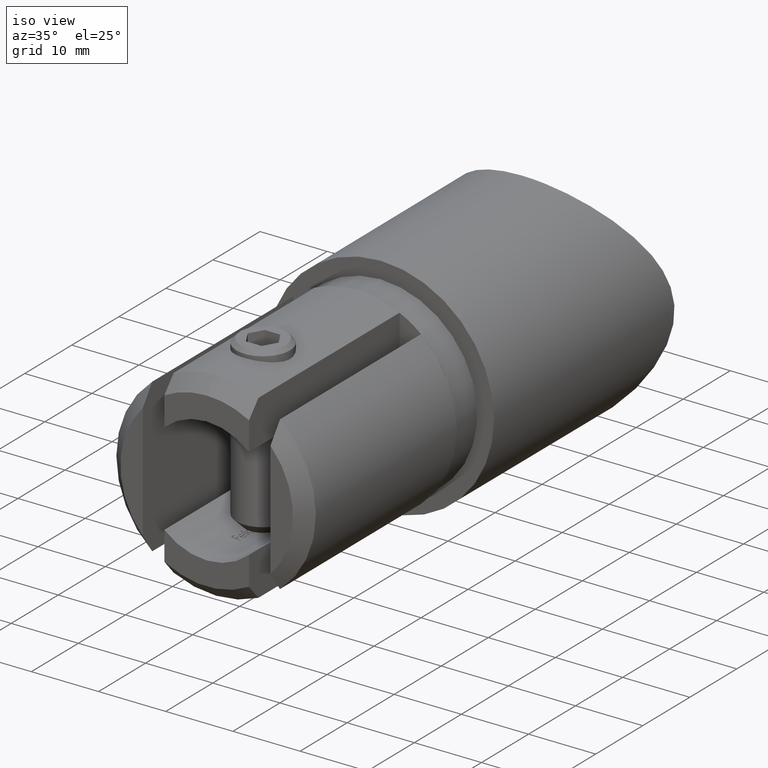
[diagram: clean part render]
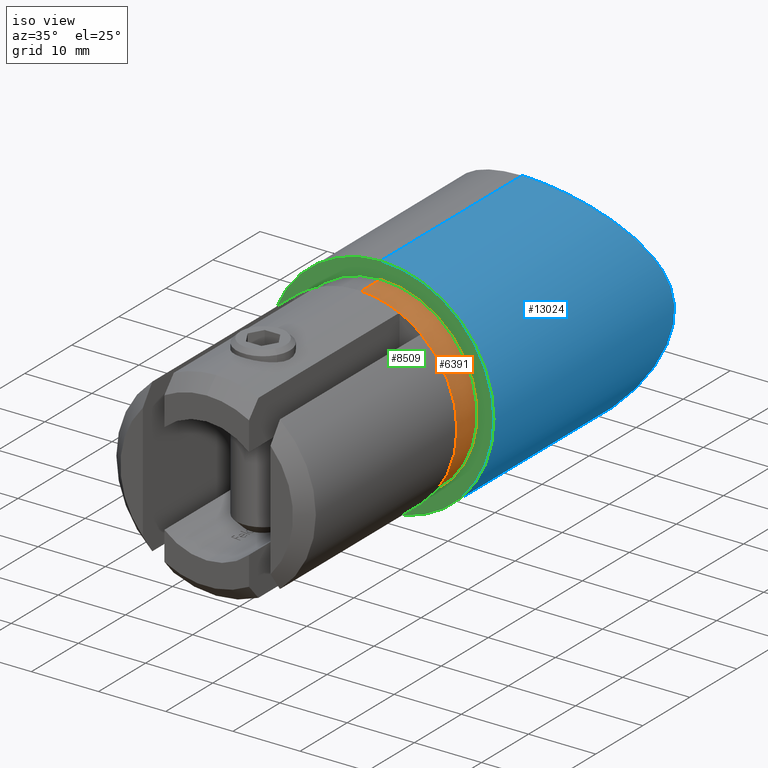
[diagram: same view with three faces highlighted in distinct colors, each labeled with its STEP entity id]
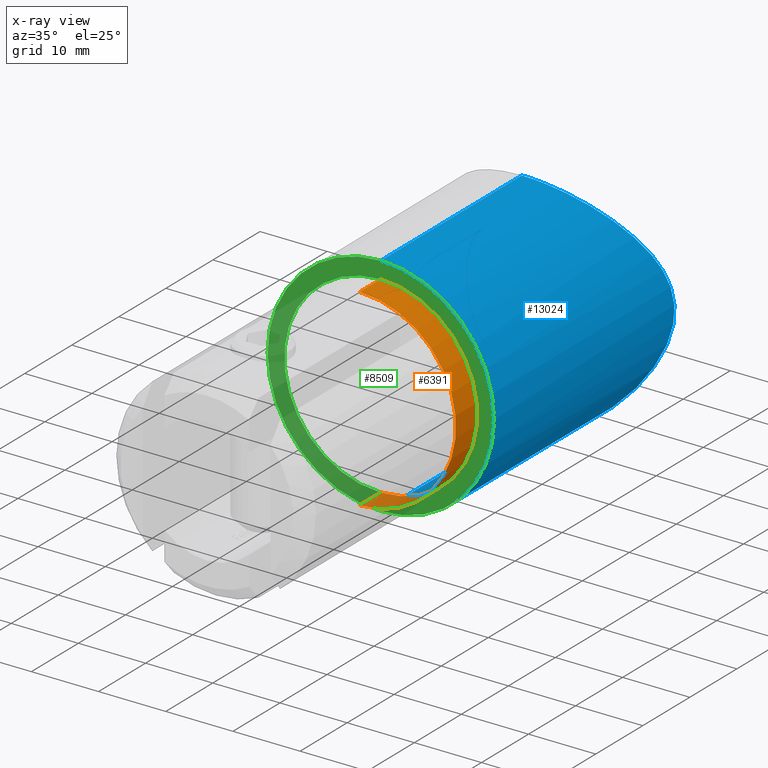
[diagram: x-ray of the same camera — body ghosted, the three highlighted faces saturated]
A machine part, iso view with three faces highlighted in distinct colors.
The next image is the same camera in x-ray (body ghosted, the three faces saturated) — at least one of them is partly hidden behind the body in this view.
Their STEP definitions:

[orange] entity #6391 — the highlighted cylindrical surface (partial cylindrical patch) has radius 14.35 mm, axis along (0, 1, 0).
#539 = CARTESIAN_POINT ( 'NONE',  ( 1.757368156776452000E-015, 0.0000000000000000000, -14.35000000000000100 ) ) ;
#964 = ORIENTED_EDGE ( 'NONE', *, *, #7772, .F. ) ;
#1414 = VERTEX_POINT ( 'NONE', #4185 ) ;
#1473 = CARTESIAN_POINT ( 'NONE',  ( 0.0000000000000000000, 0.0000000000000000000, 0.0000000000000000000 ) ) ;
#1778 = DIRECTION ( 'NONE',  ( -0.0000000000000000000, 1.000000000000000000, -0.0000000000000000000 ) ) ;
#2659 = CARTESIAN_POINT ( 'NONE',  ( 0.0000000000000000000, 0.0000000000000000000, 14.35000000000000100 ) ) ;
#3065 = VERTEX_POINT ( 'NONE', #539 ) ;
#3084 = AXIS2_PLACEMENT_3D ( 'NONE', #11923, #8751, #14047 ) ;
#3158 = VECTOR ( 'NONE', #4791, 1000.000000000000000 ) ;
#4185 = CARTESIAN_POINT ( 'NONE',  ( 1.757368156776452000E-015, -4.499999999999992900, -14.35000000000000100 ) ) ;
#4519 = DIRECTION ( 'NONE',  ( 0.0000000000000000000, 0.0000000000000000000, 1.000000000000000000 ) ) ;
#4553 = CIRCLE ( 'NONE', #13268, 14.35000000000000100 ) ;
#4791 = DIRECTION ( 'NONE',  ( -0.0000000000000000000, 1.000000000000000000, -0.0000000000000000000 ) ) ;
#4892 = VERTEX_POINT ( 'NONE', #2659 ) ;
#5031 = VERTEX_POINT ( 'NONE', #11585 ) ;
#5045 = EDGE_CURVE ( 'NONE', #1414, #3065, #13498, .T. ) ;
#5669 = CARTESIAN_POINT ( 'NONE',  ( 0.0000000000000000000, -5.500000000000000000, 0.0000000000000000000 ) ) ;
#6391 = ADVANCED_FACE ( 'NONE', ( #6809 ), #14018, .T. ) ;
#6809 = FACE_OUTER_BOUND ( 'NONE', #12159, .T. ) ;
#6879 = DIRECTION ( 'NONE',  ( -0.0000000000000000000, -1.000000000000000000, -0.0000000000000000000 ) ) ;
#7068 = LINE ( 'NONE', #7998, #3158 ) ;
#7305 = CARTESIAN_POINT ( 'NONE',  ( 1.757368156776452000E-015, -5.500000000000000000, -14.35000000000000100 ) ) ;
#7772 = EDGE_CURVE ( 'NONE', #5031, #4892, #7068, .T. ) ;
#7998 = CARTESIAN_POINT ( 'NONE',  ( 0.0000000000000000000, -5.500000000000000000, 14.35000000000000100 ) ) ;
#8532 = ORIENTED_EDGE ( 'NONE', *, *, #11386, .T. ) ;
#8751 = DIRECTION ( 'NONE',  ( 0.0000000000000000000, 1.000000000000000000, 0.0000000000000000000 ) ) ;
#8875 = AXIS2_PLACEMENT_3D ( 'NONE', #5669, #12287, #4519 ) ;
#8917 = ORIENTED_EDGE ( 'NONE', *, *, #5045, .T. ) ;
#9243 = DIRECTION ( 'NONE',  ( 0.0000000000000000000, 0.0000000000000000000, 1.000000000000000000 ) ) ;
#10526 = ORIENTED_EDGE ( 'NONE', *, *, #10846, .T. ) ;
#10846 = EDGE_CURVE ( 'NONE', #3065, #4892, #4553, .T. ) ;
#11386 = EDGE_CURVE ( 'NONE', #5031, #1414, #12094, .T. ) ;
#11585 = CARTESIAN_POINT ( 'NONE',  ( 0.0000000000000000000, -4.499999999999992900, 14.35000000000000100 ) ) ;
#11923 = CARTESIAN_POINT ( 'NONE',  ( 0.0000000000000000000, -4.499999999999992900, 0.0000000000000000000 ) ) ;
#12094 = CIRCLE ( 'NONE', #3084, 14.35000000000000100 ) ;
#12159 = EDGE_LOOP ( 'NONE', ( #8532, #8917, #10526, #964 ) ) ;
#12287 = DIRECTION ( 'NONE',  ( -0.0000000000000000000, 1.000000000000000000, -0.0000000000000000000 ) ) ;
#13166 = VECTOR ( 'NONE', #1778, 1000.000000000000000 ) ;
#13268 = AXIS2_PLACEMENT_3D ( 'NONE', #1473, #6879, #9243 ) ;
#13498 = LINE ( 'NONE', #7305, #13166 ) ;
#14018 = CYLINDRICAL_SURFACE ( 'NONE', #8875, 14.35000000000000100 ) ;
#14047 = DIRECTION ( 'NONE',  ( 0.0000000000000000000, 0.0000000000000000000, -1.000000000000000000 ) ) ;

[blue] entity #13024 — the highlighted cylindrical surface (partial cylindrical patch) has radius 16.85 mm, axis along (-0, -1, -0).
#56 = EDGE_CURVE ( 'NONE', #2814, #5144, #12674, .T. ) ;
#98 = AXIS2_PLACEMENT_3D ( 'NONE', #9007, #3548, #4784 ) ;
#626 = CARTESIAN_POINT ( 'NONE',  ( 7.716559446439381600, 31.45474614807817200, -14.98929494265544400 ) ) ;
#885 = CARTESIAN_POINT ( 'NONE',  ( 16.84259987644884000, 38.39026117274976000, -0.5789950869863749200 ) ) ;
#987 = CARTESIAN_POINT ( 'NONE',  ( 10.46225596385895600, 32.74992633264672300, 13.25165637620880700 ) ) ;
#1029 = CARTESIAN_POINT ( 'NONE',  ( 15.89937125098132500, 37.22603838976392900, -5.607292503081292300 ) ) ;
#1074 = CARTESIAN_POINT ( 'NONE',  ( 16.26003657711012500, 37.64786807820700400, 4.562650062551672800 ) ) ;
#1873 = CARTESIAN_POINT ( 'NONE',  ( 6.199476287185168700, 30.92409742411103600, -15.67799049705145200 ) ) ;
#1958 = ORIENTED_EDGE ( 'NONE', *, *, #3120, .T. ) ;
#1978 = CARTESIAN_POINT ( 'NONE',  ( 15.70975991751731900, 37.01066891572904900, -6.116587711638695500 ) ) ;
#2031 = CARTESIAN_POINT ( 'NONE',  ( 16.37714272652015500, 37.79459830865002300, -4.003997536888231700 ) ) ;
#2079 = CARTESIAN_POINT ( 'NONE',  ( 8.685260252661310100, 31.86341861385329100, 14.44953149310197600 ) ) ;
#2168 = CARTESIAN_POINT ( 'NONE',  ( 14.57885652733212600, 35.82672618552683700, -8.513162078301769900 ) ) ;
#2208 = DIRECTION ( 'NONE',  ( -0.0000000000000000000, -1.000000000000000000, -0.0000000000000000000 ) ) ;
#2409 = DIRECTION ( 'NONE',  ( -0.0000000000000000000, -1.000000000000000000, -0.0000000000000000000 ) ) ;
#2428 = VERTEX_POINT ( 'NONE', #3484 ) ;
#2814 = VERTEX_POINT ( 'NONE', #3995 ) ;
#2958 = ORIENTED_EDGE ( 'NONE', *, *, #12640, .T. ) ;
#3083 = CARTESIAN_POINT ( 'NONE',  ( 16.72934533338461400, 38.24148321607496800, 2.033668622362501100 ) ) ;
#3120 = EDGE_CURVE ( 'NONE', #2428, #2814, #7231, .T. ) ;
#3136 = CARTESIAN_POINT ( 'NONE',  ( 16.69162309614349500, 38.19244258669642300, 2.322930494330958300 ) ) ;
#3227 = CARTESIAN_POINT ( 'NONE',  ( 16.55035069560218000, 38.01166332098601700, 3.176262885880485300 ) ) ;
#3268 = CARTESIAN_POINT ( 'NONE',  ( 15.07591641674382500, 36.32437024459041200, 7.603589315827645300 ) ) ;
#3362 = CARTESIAN_POINT ( 'NONE',  ( 0.0000000000000000000, 46.85000000000000100, 0.0000000000000000000 ) ) ;
#3484 = CARTESIAN_POINT ( 'NONE',  ( -4.929448998416318200E-016, 30.00000000000000000, -16.85000000000000100 ) ) ;
#3548 = DIRECTION ( 'NONE',  ( 0.0000000000000000000, 1.000000000000000000, 0.0000000000000000000 ) ) ;
#3898 = CIRCLE ( 'NONE', #98, 16.85000000000000100 ) ;
#3995 = CARTESIAN_POINT ( 'NONE',  ( 2.063626353805236100E-015, 30.00000000000000000, 16.85000000000000100 ) ) ;
#4025 = CARTESIAN_POINT ( 'NONE',  ( 1.181556889674104900, 30.00000000000000400, -16.84999999999999800 ) ) ;
#4186 = CARTESIAN_POINT ( 'NONE',  ( 5.682154563176887900, 30.75052173111759400, 15.90264881582777600 ) ) ;
#4268 = FACE_OUTER_BOUND ( 'NONE', #13630, .T. ) ;
#4321 = CARTESIAN_POINT ( 'NONE',  ( 2.903314856846398200, 30.19279873044072100, 16.60809636845272800 ) ) ;
#4363 = CARTESIAN_POINT ( 'NONE',  ( 14.57190337983206700, 35.82022307122552700, 8.524566480894035800 ) ) ;
#4784 = DIRECTION ( 'NONE',  ( 0.0000000000000000000, 0.0000000000000000000, 1.000000000000000000 ) ) ;
#5069 = CARTESIAN_POINT ( 'NONE',  ( -4.929448998416318200E-016, 30.00000000000000000, -16.85000000000000100 ) ) ;
#5144 = VERTEX_POINT ( 'NONE', #13990 ) ;
#5276 = CARTESIAN_POINT ( 'NONE',  ( 2.320896780750530700, 30.11997647474943200, 16.69955715251201400 ) ) ;
#5327 = CARTESIAN_POINT ( 'NONE',  ( 16.84984645974758200, 38.39989471116420100, 0.5871813856123622200 ) ) ;
#5426 = CARTESIAN_POINT ( 'NONE',  ( 16.69834227667588800, 38.20095685520983200, -2.329934241616749400 ) ) ;
#5445 = DIRECTION ( 'NONE',  ( -0.0000000000000000000, -1.000000000000000000, -0.0000000000000000000 ) ) ;
#5471 = CARTESIAN_POINT ( 'NONE',  ( 15.07970173986875700, 36.32854700073314500, -7.594201935517163300 ) ) ;
#5620 = CARTESIAN_POINT ( 'NONE',  ( 2.063529856563290200E-015, 46.85000000000000100, 16.85000000000000100 ) ) ;
#5649 = AXIS2_PLACEMENT_3D ( 'NONE', #3362, #2409, #10068 ) ;
#5831 = ORIENTED_EDGE ( 'NONE', *, *, #56, .T. ) ;
#6134 = CARTESIAN_POINT ( 'NONE',  ( 3.741806056686025200, 30.33246918203720800, -16.43180256126956700 ) ) ;
#6226 = CARTESIAN_POINT ( 'NONE',  ( 5.672407247642357000, 30.76901148680994100, -15.87681490730883900 ) ) ;
#6264 = CARTESIAN_POINT ( 'NONE',  ( 7.221558526228946600, 31.26695576974164600, -15.23423725406877200 ) ) ;
#6315 = CARTESIAN_POINT ( 'NONE',  ( 4.855386588988873900, 30.56432261774377000, -16.13782699025737700 ) ) ;
#6367 = CARTESIAN_POINT ( 'NONE',  ( 1.162196273828286300, 30.02401250692947700, 16.81996048681485700 ) ) ;
#6423 = CARTESIAN_POINT ( 'NONE',  ( 12.37954093696656000, 34.00742689552697600, -11.44303726533594900 ) ) ;
#6468 = CARTESIAN_POINT ( 'NONE',  ( 7.225739337941788200, 31.26837808967687600, 15.23239462395737900 ) ) ;
#6554 = CARTESIAN_POINT ( 'NONE',  ( 16.60889948691977800, 38.08504798754958600, -2.896076310046904000 ) ) ;
#6637 = CYLINDRICAL_SURFACE ( 'NONE', #5649, 16.85000000000000100 ) ;
#7206 = CARTESIAN_POINT ( 'NONE',  ( 4.021662633155369100, 30.38486124304029800, -16.36555868954586400 ) ) ;
#7231 = B_SPLINE_CURVE_WITH_KNOTS ( 'NONE', 3,
 ( #5069, #4025, #12845, #6134, #7206, #12896, #6315, #6226, #1873, #6264, #626, #8334, #13960, #9640, #9784, #6423, #8669, #10729, #8576, #2168, #5471, #1978, #1029, #11840, #2031, #6554, #5426, #9689, #7510, #885, #7560, #5327, #11934, #3083, #3136, #10775, #3227, #1074, #12953, #3268, #4363, #14243, #10872, #7609, #9835, #7654, #987, #12032, #2079, #10915, #6468, #4186, #8717, #4321, #5276, #6367, #13156, #14060 ),
 .UNSPECIFIED., .F., .F.,
 ( 4, 2, 2, 2, 2, 2, 2, 2, 2, 2, 2, 2, 2, 2, 2, 2, 2, 2, 2, 2, 2, 2, 2, 2, 2, 2, 2, 2, 4 ),
 ( 4.768176414785982700E-019, 0.003486204510297008300, 0.004357755637871262400, 0.005229306765445515500, 0.006972409020594019300, 0.008715511275742528200, 0.01045861353089103600, 0.01394481804118804400, 0.01568792029633654300, 0.01743102255148504600, 0.02091722706178204100, 0.02266032931693054400, 0.02440343157207904700, 0.02614653382722755300, 0.02701808495480180800, 0.02788963608237606300, 0.02963273833752457000, 0.03050428946509883100, 0.03137584059267308600, 0.03486204510297012000, 0.03834824961326715300, 0.04009135186841567000, 0.04183445412356418000, 0.04532065863386119200, 0.04706376088900970200, 0.04880686314415821200, 0.05229306765445524600, 0.05403616990960376200, 0.05577927216475227200 ),
 .UNSPECIFIED. ) ;
#7510 = CARTESIAN_POINT ( 'NONE',  ( 16.81227433853598200, 38.35017399252556200, -1.164404343307616600 ) ) ;
#7560 = CARTESIAN_POINT ( 'NONE',  ( 16.85007589948661500, 38.40019912763645500, -0.2869566268789489600 ) ) ;
#7609 = CARTESIAN_POINT ( 'NONE',  ( 12.73050817194819100, 34.26785975943553800, 11.05123679378871900 ) ) ;
#7654 = CARTESIAN_POINT ( 'NONE',  ( 11.26811081407450900, 33.23804050639667900, 12.57238595221240000 ) ) ;
#8334 = CARTESIAN_POINT ( 'NONE',  ( 8.676456957169730100, 31.85940792835983300, -14.45487278528352200 ) ) ;
#8527 = VECTOR ( 'NONE', #2208, 1000.000000000000000 ) ;
#8576 = CARTESIAN_POINT ( 'NONE',  ( 13.70508190112805600, 35.05218962763225900, -9.816661939649588200 ) ) ;
#8669 = CARTESIAN_POINT ( 'NONE',  ( 12.72847263667140200, 34.26627660634675000, -11.05368324114858100 ) ) ;
#8717 = CARTESIAN_POINT ( 'NONE',  ( 4.603994318370679300, 30.47636199280558600, 16.25017368779794000 ) ) ;
#9007 = CARTESIAN_POINT ( 'NONE',  ( 0.0000000000000000000, 0.0000000000000000000, 0.0000000000000000000 ) ) ;
#9423 = VECTOR ( 'NONE', #5445, 1000.000000000000000 ) ;
#9640 = CARTESIAN_POINT ( 'NONE',  ( 10.47460710940569400, 32.75646066043319800, -13.24273767105796700 ) ) ;
#9689 = CARTESIAN_POINT ( 'NONE',  ( 16.78924501553718000, 38.31979111992669800, -1.459086665719270900 ) ) ;
#9771 = VERTEX_POINT ( 'NONE', #11335 ) ;
#9784 = CARTESIAN_POINT ( 'NONE',  ( 11.27907401306256600, 33.24534105688385200, -12.56182837294990100 ) ) ;
#9835 = CARTESIAN_POINT ( 'NONE',  ( 12.37811252626949500, 34.00629326756899200, 11.44478080827339300 ) ) ;
#10068 = DIRECTION ( 'NONE',  ( 0.0000000000000000000, 0.0000000000000000000, -1.000000000000000000 ) ) ;
#10403 = ORIENTED_EDGE ( 'NONE', *, *, #13598, .F. ) ;
#10729 = CARTESIAN_POINT ( 'NONE',  ( 13.39169392186835900, 34.78893648901105000, -10.24013978230451400 ) ) ;
#10775 = CARTESIAN_POINT ( 'NONE',  ( 16.60198807763620000, 38.07735388519427700, 2.894871246744711100 ) ) ;
#10872 = CARTESIAN_POINT ( 'NONE',  ( 13.39095838597454100, 34.78837785812929400, 10.24099148000461800 ) ) ;
#10915 = CARTESIAN_POINT ( 'NONE',  ( 7.728196076698862000, 31.45935860308019700, 14.98324702548485600 ) ) ;
#10956 = CARTESIAN_POINT ( 'NONE',  ( 0.0000000000000000000, 46.85000000000000100, -16.85000000000000100 ) ) ;
#11335 = CARTESIAN_POINT ( 'NONE',  ( 0.0000000000000000000, 0.0000000000000000000, -16.85000000000000100 ) ) ;
#11840 = CARTESIAN_POINT ( 'NONE',  ( 16.23448004153123500, 37.61970049591035100, -4.546800322508919300 ) ) ;
#11934 = CARTESIAN_POINT ( 'NONE',  ( 16.81954587140095100, 38.35940843821148100, 1.167300336981163000 ) ) ;
#12032 = CARTESIAN_POINT ( 'NONE',  ( 9.143368710650285900, 32.07758402610883100, 14.16357944739626300 ) ) ;
#12640 = EDGE_CURVE ( 'NONE', #5144, #9771, #3898, .T. ) ;
#12674 = LINE ( 'NONE', #5620, #9423 ) ;
#12845 = CARTESIAN_POINT ( 'NONE',  ( 2.334163097661091400, 30.09845567374396000, -16.72716802952226400 ) ) ;
#12896 = CARTESIAN_POINT ( 'NONE',  ( 4.578047043663654700, 30.50067405663441600, -16.21871655902189200 ) ) ;
#12953 = CARTESIAN_POINT ( 'NONE',  ( 15.92600673886125900, 37.24486377449370900, 5.608933556582748300 ) ) ;
#13024 = ADVANCED_FACE ( 'NONE', ( #4268 ), #6637, .T. ) ;
#13156 = CARTESIAN_POINT ( 'NONE',  ( 0.5816800667479409300, 30.00000000000000000, 16.85000000000000900 ) ) ;
#13598 = EDGE_CURVE ( 'NONE', #2428, #9771, #13866, .T. ) ;
#13630 = EDGE_LOOP ( 'NONE', ( #1958, #5831, #2958, #10403 ) ) ;
#13866 = LINE ( 'NONE', #10956, #8527 ) ;
#13960 = CARTESIAN_POINT ( 'NONE',  ( 9.143178854853113400, 32.07736906135672000, -14.16389879970852100 ) ) ;
#13990 = CARTESIAN_POINT ( 'NONE',  ( 2.063529856563290200E-015, 0.0000000000000000000, 16.85000000000000100 ) ) ;
#14060 = CARTESIAN_POINT ( 'NONE',  ( 2.063626353805236100E-015, 30.00000000000000000, 16.85000000000000100 ) ) ;
#14243 = CARTESIAN_POINT ( 'NONE',  ( 13.70076318717925400, 35.04853352914752700, 9.822581816326078300 ) ) ;

[green] entity #8509 — the highlighted planar face has unit normal (0, 1, 0).
#98 = AXIS2_PLACEMENT_3D ( 'NONE', #9007, #3548, #4784 ) ;
#539 = CARTESIAN_POINT ( 'NONE',  ( 1.757368156776452000E-015, 0.0000000000000000000, -14.35000000000000100 ) ) ;
#651 = ORIENTED_EDGE ( 'NONE', *, *, #12640, .F. ) ;
#838 = ORIENTED_EDGE ( 'NONE', *, *, #9740, .F. ) ;
#1044 = EDGE_LOOP ( 'NONE', ( #838, #651 ) ) ;
#1456 = CARTESIAN_POINT ( 'NONE',  ( 0.0000000000000000000, 0.0000000000000000000, 0.0000000000000000000 ) ) ;
#1473 = CARTESIAN_POINT ( 'NONE',  ( 0.0000000000000000000, 0.0000000000000000000, 0.0000000000000000000 ) ) ;
#2069 = EDGE_CURVE ( 'NONE', #4892, #3065, #11361, .T. ) ;
#2659 = CARTESIAN_POINT ( 'NONE',  ( 0.0000000000000000000, 0.0000000000000000000, 14.35000000000000100 ) ) ;
#2807 = DIRECTION ( 'NONE',  ( -0.0000000000000000000, -1.000000000000000000, -0.0000000000000000000 ) ) ;
#3065 = VERTEX_POINT ( 'NONE', #539 ) ;
#3548 = DIRECTION ( 'NONE',  ( 0.0000000000000000000, 1.000000000000000000, 0.0000000000000000000 ) ) ;
#3898 = CIRCLE ( 'NONE', #98, 16.85000000000000100 ) ;
#3926 = CIRCLE ( 'NONE', #14164, 16.85000000000000100 ) ;
#4553 = CIRCLE ( 'NONE', #13268, 14.35000000000000100 ) ;
#4703 = ORIENTED_EDGE ( 'NONE', *, *, #2069, .F. ) ;
#4784 = DIRECTION ( 'NONE',  ( 0.0000000000000000000, 0.0000000000000000000, 1.000000000000000000 ) ) ;
#4882 = CARTESIAN_POINT ( 'NONE',  ( 0.0000000000000000000, 0.0000000000000000000, 0.0000000000000000000 ) ) ;
#4892 = VERTEX_POINT ( 'NONE', #2659 ) ;
#5144 = VERTEX_POINT ( 'NONE', #13990 ) ;
#6486 = AXIS2_PLACEMENT_3D ( 'NONE', #7137, #2807, #7366 ) ;
#6536 = FACE_BOUND ( 'NONE', #12854, .T. ) ;
#6879 = DIRECTION ( 'NONE',  ( -0.0000000000000000000, -1.000000000000000000, -0.0000000000000000000 ) ) ;
#7069 = DIRECTION ( 'NONE',  ( 0.0000000000000000000, 1.000000000000000000, 0.0000000000000000000 ) ) ;
#7137 = CARTESIAN_POINT ( 'NONE',  ( 0.0000000000000000000, 0.0000000000000000000, 0.0000000000000000000 ) ) ;
#7366 = DIRECTION ( 'NONE',  ( 0.0000000000000000000, 0.0000000000000000000, 1.000000000000000000 ) ) ;
#8509 = ADVANCED_FACE ( 'NONE', ( #6536, #9466 ), #12499, .F. ) ;
#9007 = CARTESIAN_POINT ( 'NONE',  ( 0.0000000000000000000, 0.0000000000000000000, 0.0000000000000000000 ) ) ;
#9131 = DIRECTION ( 'NONE',  ( 0.0000000000000000000, 0.0000000000000000000, 1.000000000000000000 ) ) ;
#9243 = DIRECTION ( 'NONE',  ( 0.0000000000000000000, 0.0000000000000000000, 1.000000000000000000 ) ) ;
#9466 = FACE_OUTER_BOUND ( 'NONE', #1044, .T. ) ;
#9740 = EDGE_CURVE ( 'NONE', #9771, #5144, #3926, .T. ) ;
#9771 = VERTEX_POINT ( 'NONE', #11335 ) ;
#10846 = EDGE_CURVE ( 'NONE', #3065, #4892, #4553, .T. ) ;
#11316 = AXIS2_PLACEMENT_3D ( 'NONE', #4882, #7069, #12543 ) ;
#11335 = CARTESIAN_POINT ( 'NONE',  ( 0.0000000000000000000, 0.0000000000000000000, -16.85000000000000100 ) ) ;
#11361 = CIRCLE ( 'NONE', #6486, 14.35000000000000100 ) ;
#12492 = DIRECTION ( 'NONE',  ( 0.0000000000000000000, 1.000000000000000000, 0.0000000000000000000 ) ) ;
#12499 = PLANE ( 'NONE',  #11316 ) ;
#12543 = DIRECTION ( 'NONE',  ( 0.0000000000000000000, -0.0000000000000000000, 1.000000000000000000 ) ) ;
#12640 = EDGE_CURVE ( 'NONE', #5144, #9771, #3898, .T. ) ;
#12854 = EDGE_LOOP ( 'NONE', ( #4703, #13127 ) ) ;
#13127 = ORIENTED_EDGE ( 'NONE', *, *, #10846, .F. ) ;
#13268 = AXIS2_PLACEMENT_3D ( 'NONE', #1473, #6879, #9243 ) ;
#13990 = CARTESIAN_POINT ( 'NONE',  ( 2.063529856563290200E-015, 0.0000000000000000000, 16.85000000000000100 ) ) ;
#14164 = AXIS2_PLACEMENT_3D ( 'NONE', #1456, #12492, #9131 ) ;